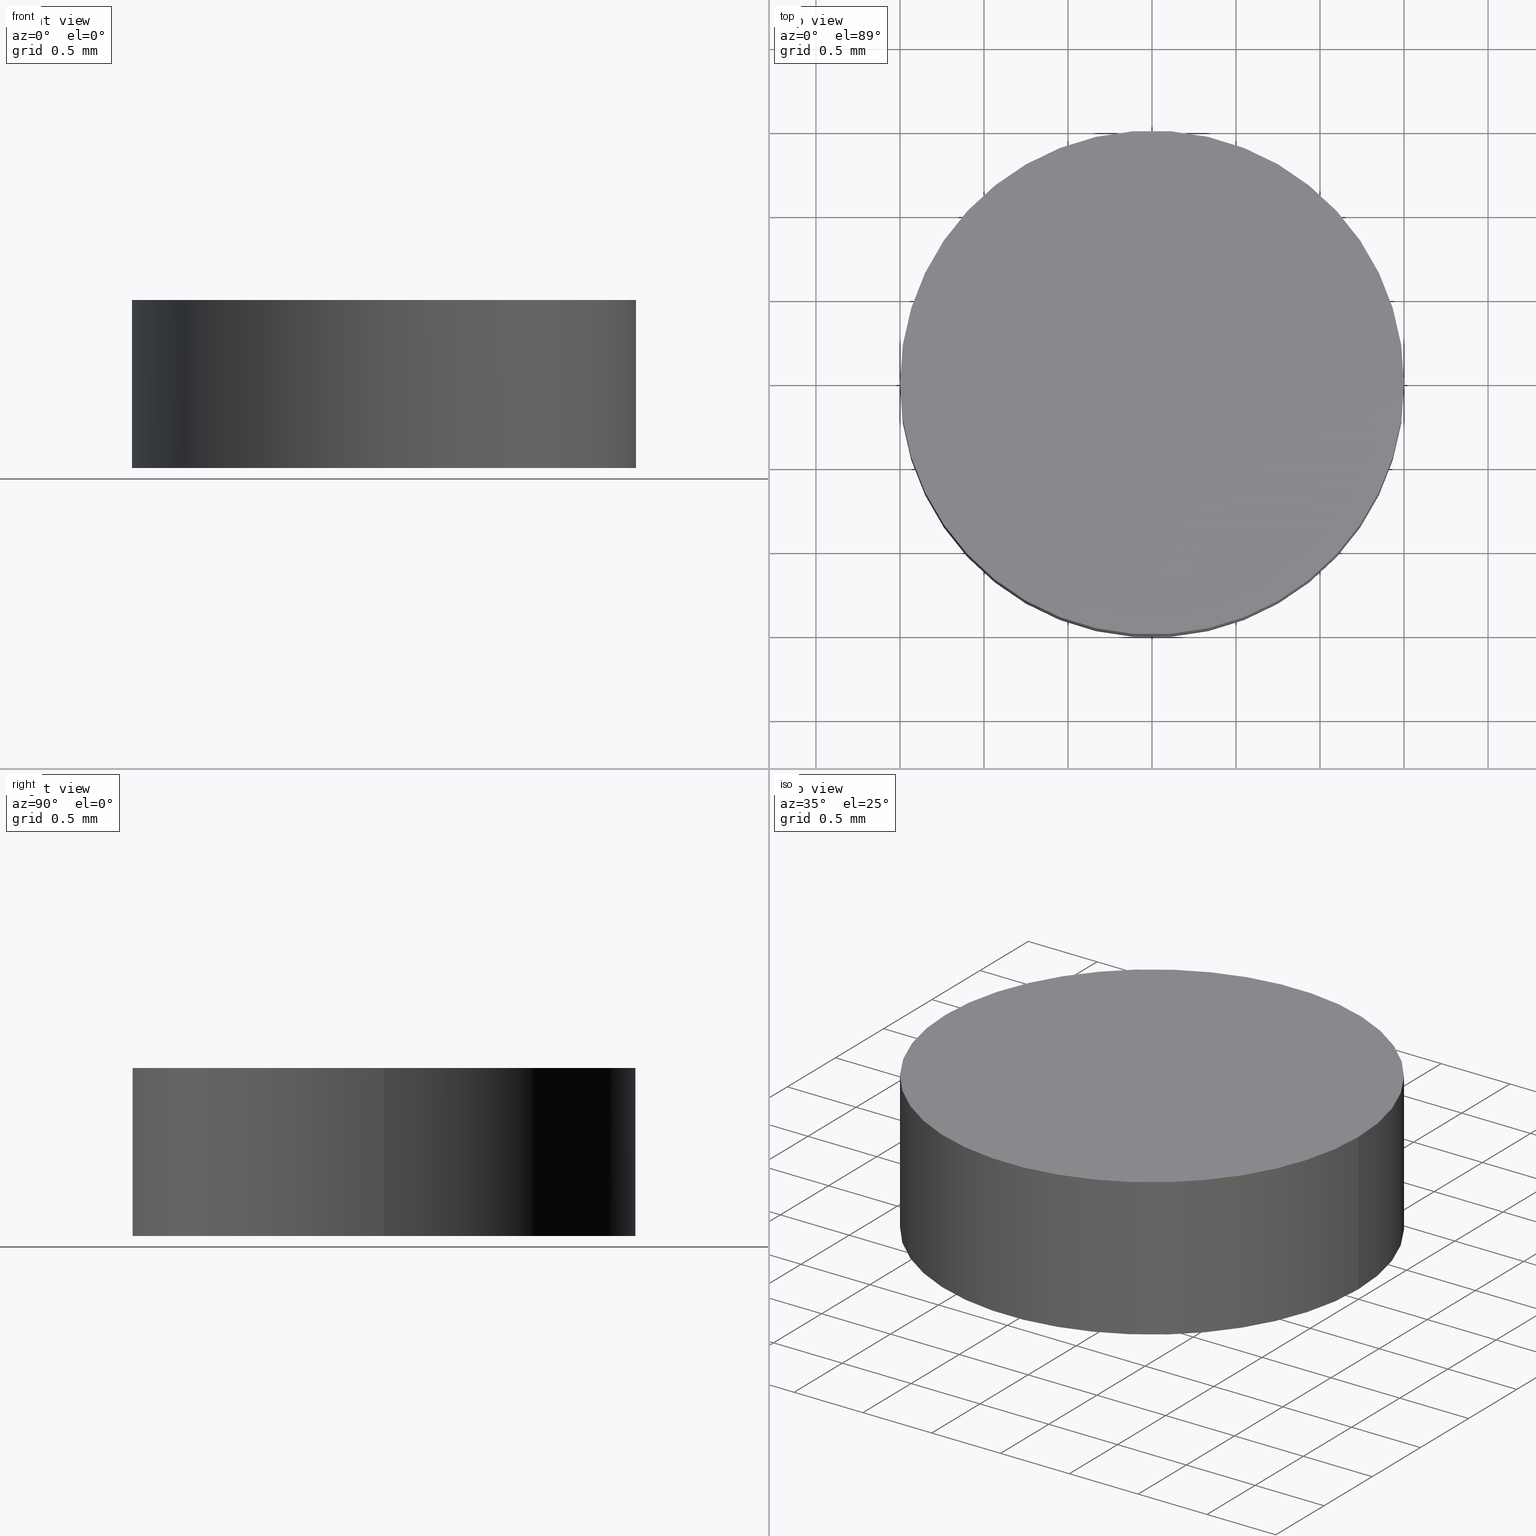
[diagram: canonical four-view strip — front | top / right | iso, engineering-drawing reading convention]
A machine part, canonical four-view strip (front | top / right | iso — engineering-drawing reading convention). The complete STEP part file that produces these views, byte-faithful:
ISO-10303-21;
HEADER;
FILE_DESCRIPTION (( 'STEP AP214' ),
    '1' );
FILE_NAME ('190118.STEP',
    '2019-07-17T03:08:43',
    ( 'user' ),
    ( '΢���й�' ),
    'SwSTEP 2.0',
    'SolidWorks 2016',
    '' );
FILE_SCHEMA (( 'AUTOMOTIVE_DESIGN' ));
ENDSEC;

DATA;
#1 =( NAMED_UNIT ( * ) SI_UNIT ( $, .STERADIAN. ) SOLID_ANGLE_UNIT ( ) );
#2 = ADVANCED_BREP_SHAPE_REPRESENTATION ( '190118', ( #74, #41 ), #132 ) ;
#3 = VERTEX_POINT ( 'NONE', #110 ) ;
#4 = STYLED_ITEM ( 'NONE', ( #14 ), #2 ) ;
#5 = DIRECTION ( 'NONE',  ( 0.0000000000000000000, 0.0000000000000000000, 1.000000000000000000 ) ) ;
#6 = DIRECTION ( 'NONE',  ( -0.0000000000000000000, -0.0000000000000000000, -1.000000000000000000 ) ) ;
#7 = FILL_AREA_STYLE_COLOUR ( '', #88 ) ;
#8 = FACE_OUTER_BOUND ( 'NONE', #75, .T. ) ;
#9 = DIRECTION ( 'NONE',  ( 0.0000000000000000000, 0.0000000000000000000, 1.000000000000000000 ) ) ;
#10 = ORIENTED_EDGE ( 'NONE', *, *, #115, .F. ) ;
#11 = PRESENTATION_LAYER_ASSIGNMENT (  '', '', ( #4 ) ) ;
#12 = PRODUCT ( '190118', '190118', '', ( #52 ) ) ;
#13 =( NAMED_UNIT ( * ) SI_UNIT ( $, .STERADIAN. ) SOLID_ANGLE_UNIT ( ) );
#14 = PRESENTATION_STYLE_ASSIGNMENT (( #133 ) ) ;
#15 = FILL_AREA_STYLE ('',( #7 ) ) ;
#16 = MECHANICAL_DESIGN_GEOMETRIC_PRESENTATION_REPRESENTATION (  '', ( #4 ), #22 ) ;
#17 = VERTEX_POINT ( 'NONE', #117 ) ;
#18 = DIRECTION ( 'NONE',  ( 0.0000000000000000000, 0.0000000000000000000, 1.000000000000000000 ) ) ;
#19 = LINE ( 'NONE', #21, #89 ) ;
#20 = UNCERTAINTY_MEASURE_WITH_UNIT (LENGTH_MEASURE( 1.000000000000000100E-005 ), #107, 'distance_accuracy_value', 'NONE');
#21 = CARTESIAN_POINT ( 'NONE',  ( -1.500000000000000200, 0.0000000000000000000, 1.000000000000000000 ) ) ;
#22 =( GEOMETRIC_REPRESENTATION_CONTEXT ( 3 ) GLOBAL_UNCERTAINTY_ASSIGNED_CONTEXT ( ( #85 ) ) GLOBAL_UNIT_ASSIGNED_CONTEXT ( ( #129, #103, #77 ) ) REPRESENTATION_CONTEXT ( 'NONE', 'WORKASPACE' ) );
#23 = EDGE_CURVE ( 'NONE', #31, #17, #127, .T. ) ;
#24 = ORIENTED_EDGE ( 'NONE', *, *, #115, .T. ) ;
#25 = COLOUR_RGB ( '',1.000000000000000000, 1.000000000000000000, 1.000000000000000000 ) ;
#26 = ORIENTED_EDGE ( 'NONE', *, *, #87, .F. ) ;
#27 =( NAMED_UNIT ( * ) PLANE_ANGLE_UNIT ( ) SI_UNIT ( $, .RADIAN. ) );
#28 = CARTESIAN_POINT ( 'NONE',  ( 0.0000000000000000000, 0.0000000000000000000, 1.000000000000000000 ) ) ;
#29 = AXIS2_PLACEMENT_3D ( 'NONE', #138, #54, #123 ) ;
#30 = MECHANICAL_DESIGN_GEOMETRIC_PRESENTATION_REPRESENTATION (  '', ( #94 ), #102 ) ;
#31 = VERTEX_POINT ( 'NONE', #42 ) ;
#32 = CARTESIAN_POINT ( 'NONE',  ( 0.0000000000000000000, 0.0000000000000000000, 0.0000000000000000000 ) ) ;
#33 = CARTESIAN_POINT ( 'NONE',  ( 0.0000000000000000000, 0.0000000000000000000, 1.000000000000000000 ) ) ;
#34 = AXIS2_PLACEMENT_3D ( 'NONE', #55, #18, #45 ) ;
#35 = DIRECTION ( 'NONE',  ( 1.000000000000000000, 0.0000000000000000000, -0.0000000000000000000 ) ) ;
#36 = SURFACE_STYLE_FILL_AREA ( #15 ) ;
#37 = UNCERTAINTY_MEASURE_WITH_UNIT (LENGTH_MEASURE( 1.000000000000000100E-005 ), #78, 'distance_accuracy_value', 'NONE');
#38 = ADVANCED_FACE ( 'NONE', ( #8 ), #120, .T. ) ;
#39 = EDGE_LOOP ( 'NONE', ( #126, #66, #82, #26 ) ) ;
#40 = DIRECTION ( 'NONE',  ( -0.0000000000000000000, -0.0000000000000000000, -1.000000000000000000 ) ) ;
#41 = AXIS2_PLACEMENT_3D ( 'NONE', #91, #5, #68 ) ;
#42 = CARTESIAN_POINT ( 'NONE',  ( -1.500000000000000200, 0.0000000000000000000, 0.0000000000000000000 ) ) ;
#43 = FACE_OUTER_BOUND ( 'NONE', #80, .T. ) ;
#44 = EDGE_CURVE ( 'NONE', #100, #17, #73, .T. ) ;
#45 = DIRECTION ( 'NONE',  ( 1.000000000000000000, 0.0000000000000000000, 0.0000000000000000000 ) ) ;
#46 = DIRECTION ( 'NONE',  ( -1.000000000000000000, 0.0000000000000000000, 0.0000000000000000000 ) ) ;
#47 = PRODUCT_DEFINITION ( 'δ֪', '', #58, #49 ) ;
#48 = CYLINDRICAL_SURFACE ( 'NONE', #121, 1.500000000000000200 ) ;
#49 = PRODUCT_DEFINITION_CONTEXT ( 'detailed design', #137, 'design' ) ;
#50 = SURFACE_STYLE_USAGE ( .BOTH. , #67 ) ;
#51 = ORIENTED_EDGE ( 'NONE', *, *, #106, .T. ) ;
#52 = PRODUCT_CONTEXT ( 'NONE', #83, 'mechanical' ) ;
#53 = ADVANCED_FACE ( 'NONE', ( #43 ), #96, .F. ) ;
#54 = DIRECTION ( 'NONE',  ( 0.0000000000000000000, 0.0000000000000000000, 1.000000000000000000 ) ) ;
#55 = CARTESIAN_POINT ( 'NONE',  ( 0.0000000000000000000, 0.0000000000000000000, 0.0000000000000000000 ) ) ;
#56 = CIRCLE ( 'NONE', #111, 1.500000000000000200 ) ;
#57 = ORIENTED_EDGE ( 'NONE', *, *, #23, .T. ) ;
#58 = PRODUCT_DEFINITION_FORMATION_WITH_SPECIFIED_SOURCE ( '�κ�', '', #12, .NOT_KNOWN. ) ;
#59 = SURFACE_STYLE_FILL_AREA ( #136 ) ;
#60 = PRODUCT_DEFINITION_SHAPE ( 'NONE', 'NONE',  #47 ) ;
#61 = AXIS2_PLACEMENT_3D ( 'NONE', #32, #105, #135 ) ;
#62 = ORIENTED_EDGE ( 'NONE', *, *, #125, .F. ) ;
#63 = DIRECTION ( 'NONE',  ( 1.000000000000000000, 0.0000000000000000000, 0.0000000000000000000 ) ) ;
#64 = CARTESIAN_POINT ( 'NONE',  ( 0.0000000000000000000, 0.0000000000000000000, 0.0000000000000000000 ) ) ;
#65 =( NAMED_UNIT ( * ) PLANE_ANGLE_UNIT ( ) SI_UNIT ( $, .RADIAN. ) );
#66 = ORIENTED_EDGE ( 'NONE', *, *, #44, .T. ) ;
#67 = SURFACE_SIDE_STYLE ('',( #59 ) ) ;
#68 = DIRECTION ( 'NONE',  ( 1.000000000000000000, 0.0000000000000000000, 0.0000000000000000000 ) ) ;
#69 = PRODUCT_RELATED_PRODUCT_CATEGORY ( 'part', '', ( #12 ) ) ;
#70 = CARTESIAN_POINT ( 'NONE',  ( 0.0000000000000000000, 0.0000000000000000000, 1.000000000000000000 ) ) ;
#71 = DIRECTION ( 'NONE',  ( 1.000000000000000000, 0.0000000000000000000, 0.0000000000000000000 ) ) ;
#72 = CIRCLE ( 'NONE', #112, 1.500000000000000200 ) ;
#73 = LINE ( 'NONE', #97, #119 ) ;
#74 = MANIFOLD_SOLID_BREP ( '͹̨-����1', #108 ) ;
#75 = EDGE_LOOP ( 'NONE', ( #24, #51 ) ) ;
#76 = SURFACE_SIDE_STYLE ('',( #36 ) ) ;
#77 =( NAMED_UNIT ( * ) SI_UNIT ( $, .STERADIAN. ) SOLID_ANGLE_UNIT ( ) );
#78 =( LENGTH_UNIT ( ) NAMED_UNIT ( * ) SI_UNIT ( .MILLI., .METRE. ) );
#79 = DIRECTION ( 'NONE',  ( -0.0000000000000000000, -0.0000000000000000000, -1.000000000000000000 ) ) ;
#80 = EDGE_LOOP ( 'NONE', ( #99, #62 ) ) ;
#81 = CIRCLE ( 'NONE', #29, 1.500000000000000200 ) ;
#82 = ORIENTED_EDGE ( 'NONE', *, *, #125, .T. ) ;
#83 = APPLICATION_CONTEXT ( 'automotive_design' ) ;
#84 = DIRECTION ( 'NONE',  ( -1.000000000000000000, 0.0000000000000000000, 0.0000000000000000000 ) ) ;
#85 = UNCERTAINTY_MEASURE_WITH_UNIT (LENGTH_MEASURE( 1.000000000000000100E-005 ), #129, 'distance_accuracy_value', 'NONE');
#86 = FACE_OUTER_BOUND ( 'NONE', #90, .T. ) ;
#87 = EDGE_CURVE ( 'NONE', #3, #31, #19, .T. ) ;
#88 = COLOUR_RGB ( '',1.000000000000000000, 1.000000000000000000, 1.000000000000000000 ) ;
#89 = VECTOR ( 'NONE', #79, 1000.000000000000000 ) ;
#90 = EDGE_LOOP ( 'NONE', ( #134, #10, #93, #57 ) ) ;
#91 = CARTESIAN_POINT ( 'NONE',  ( 0.0000000000000000000, 0.0000000000000000000, 0.0000000000000000000 ) ) ;
#92 = DIRECTION ( 'NONE',  ( 0.0000000000000000000, 0.0000000000000000000, 1.000000000000000000 ) ) ;
#93 = ORIENTED_EDGE ( 'NONE', *, *, #87, .T. ) ;
#94 = STYLED_ITEM ( 'NONE', ( #101 ), #74 ) ;
#95 = APPLICATION_PROTOCOL_DEFINITION ( 'draft international standard', 'automotive_design', 1998, #83 ) ;
#96 = PLANE ( 'NONE',  #61 ) ;
#97 = CARTESIAN_POINT ( 'NONE',  ( 1.500000000000000200, 1.836970198721030200E-016, 1.000000000000000000 ) ) ;
#98 = AXIS2_PLACEMENT_3D ( 'NONE', #33, #9, #35 ) ;
#99 = ORIENTED_EDGE ( 'NONE', *, *, #23, .F. ) ;
#100 = VERTEX_POINT ( 'NONE', #109 ) ;
#101 = PRESENTATION_STYLE_ASSIGNMENT (( #50 ) ) ;
#102 =( GEOMETRIC_REPRESENTATION_CONTEXT ( 3 ) GLOBAL_UNCERTAINTY_ASSIGNED_CONTEXT ( ( #20 ) ) GLOBAL_UNIT_ASSIGNED_CONTEXT ( ( #107, #65, #13 ) ) REPRESENTATION_CONTEXT ( 'NONE', 'WORKASPACE' ) );
#103 =( NAMED_UNIT ( * ) PLANE_ANGLE_UNIT ( ) SI_UNIT ( $, .RADIAN. ) );
#104 = AXIS2_PLACEMENT_3D ( 'NONE', #128, #40, #46 ) ;
#105 = DIRECTION ( 'NONE',  ( 0.0000000000000000000, 0.0000000000000000000, 1.000000000000000000 ) ) ;
#106 = EDGE_CURVE ( 'NONE', #100, #3, #56, .T. ) ;
#107 =( LENGTH_UNIT ( ) NAMED_UNIT ( * ) SI_UNIT ( .MILLI., .METRE. ) );
#108 = CLOSED_SHELL ( 'NONE', ( #124, #113, #38, #53 ) ) ;
#109 = CARTESIAN_POINT ( 'NONE',  ( 1.500000000000000200, 1.836970198721030200E-016, 1.000000000000000000 ) ) ;
#110 = CARTESIAN_POINT ( 'NONE',  ( -1.500000000000000200, 0.0000000000000000000, 1.000000000000000000 ) ) ;
#111 = AXIS2_PLACEMENT_3D ( 'NONE', #28, #92, #63 ) ;
#112 = AXIS2_PLACEMENT_3D ( 'NONE', #64, #139, #71 ) ;
#113 = ADVANCED_FACE ( 'NONE', ( #86 ), #118, .T. ) ;
#114 = SHAPE_DEFINITION_REPRESENTATION ( #60, #2 ) ;
#115 = EDGE_CURVE ( 'NONE', #3, #100, #81, .T. ) ;
#116 = FILL_AREA_STYLE_COLOUR ( '', #25 ) ;
#117 = CARTESIAN_POINT ( 'NONE',  ( 1.500000000000000200, 1.836970198721030200E-016, 0.0000000000000000000 ) ) ;
#118 = CYLINDRICAL_SURFACE ( 'NONE', #104, 1.500000000000000200 ) ;
#119 = VECTOR ( 'NONE', #131, 1000.000000000000000 ) ;
#120 = PLANE ( 'NONE',  #98 ) ;
#121 = AXIS2_PLACEMENT_3D ( 'NONE', #70, #6, #84 ) ;
#122 = APPLICATION_PROTOCOL_DEFINITION ( 'draft international standard', 'automotive_design', 1998, #137 ) ;
#123 = DIRECTION ( 'NONE',  ( 1.000000000000000000, 0.0000000000000000000, 0.0000000000000000000 ) ) ;
#124 = ADVANCED_FACE ( 'NONE', ( #140 ), #48, .T. ) ;
#125 = EDGE_CURVE ( 'NONE', #17, #31, #72, .T. ) ;
#126 = ORIENTED_EDGE ( 'NONE', *, *, #106, .F. ) ;
#127 = CIRCLE ( 'NONE', #34, 1.500000000000000200 ) ;
#128 = CARTESIAN_POINT ( 'NONE',  ( 0.0000000000000000000, 0.0000000000000000000, 1.000000000000000000 ) ) ;
#129 =( LENGTH_UNIT ( ) NAMED_UNIT ( * ) SI_UNIT ( .MILLI., .METRE. ) );
#130 = PRESENTATION_LAYER_ASSIGNMENT (  '', '', ( #94 ) ) ;
#131 = DIRECTION ( 'NONE',  ( -0.0000000000000000000, -0.0000000000000000000, -1.000000000000000000 ) ) ;
#132 =( GEOMETRIC_REPRESENTATION_CONTEXT ( 3 ) GLOBAL_UNCERTAINTY_ASSIGNED_CONTEXT ( ( #37 ) ) GLOBAL_UNIT_ASSIGNED_CONTEXT ( ( #78, #27, #1 ) ) REPRESENTATION_CONTEXT ( 'NONE', 'WORKASPACE' ) );
#133 = SURFACE_STYLE_USAGE ( .BOTH. , #76 ) ;
#134 = ORIENTED_EDGE ( 'NONE', *, *, #44, .F. ) ;
#135 = DIRECTION ( 'NONE',  ( 1.000000000000000000, 0.0000000000000000000, -0.0000000000000000000 ) ) ;
#136 = FILL_AREA_STYLE ('',( #116 ) ) ;
#137 = APPLICATION_CONTEXT ( 'automotive_design' ) ;
#138 = CARTESIAN_POINT ( 'NONE',  ( 0.0000000000000000000, 0.0000000000000000000, 1.000000000000000000 ) ) ;
#139 = DIRECTION ( 'NONE',  ( 0.0000000000000000000, 0.0000000000000000000, 1.000000000000000000 ) ) ;
#140 = FACE_OUTER_BOUND ( 'NONE', #39, .T. ) ;
ENDSEC;
END-ISO-10303-21;
